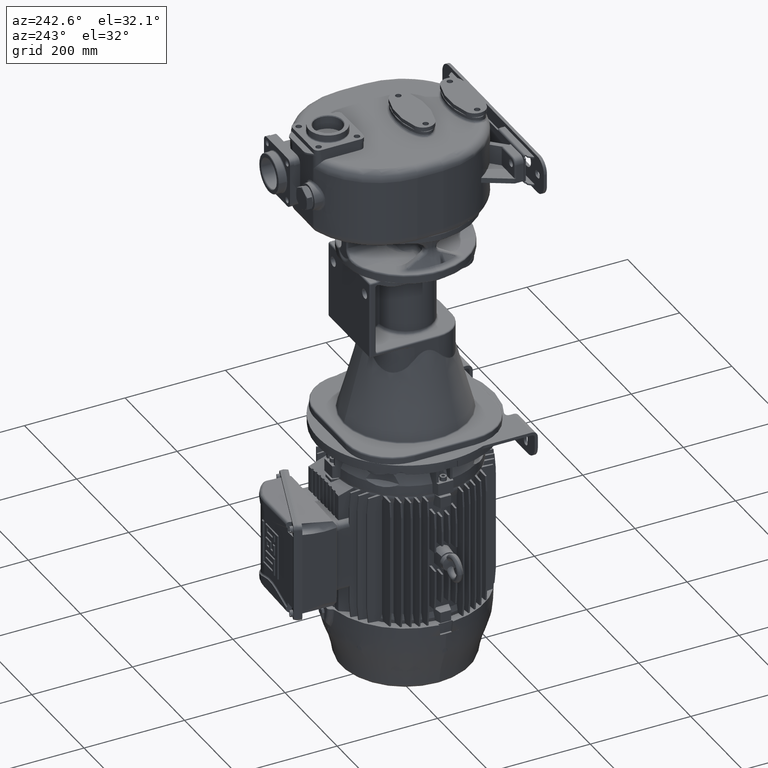
[diagram: clean part render]
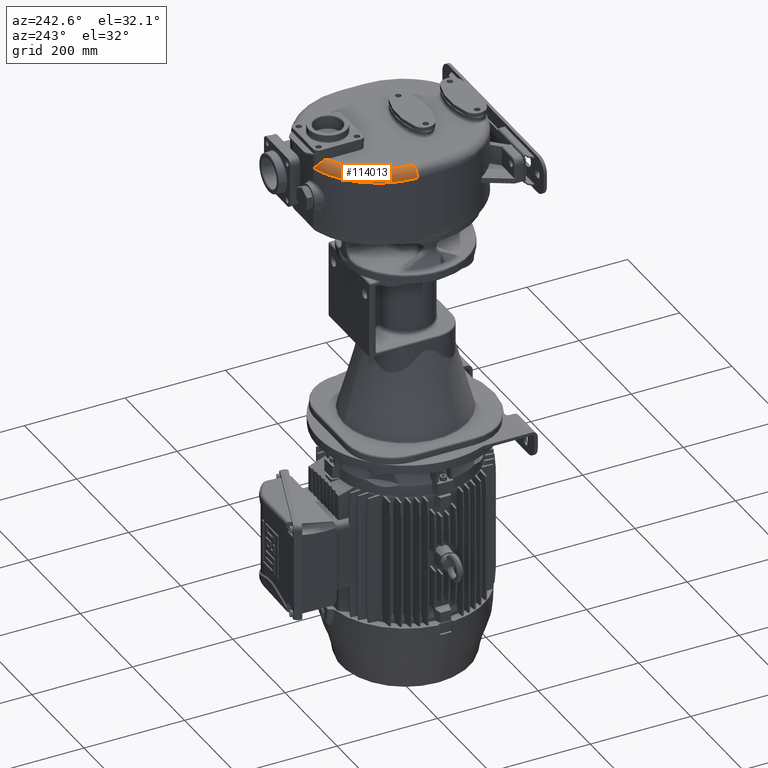
[diagram: same view with one face highlighted and labeled with its STEP entity id]
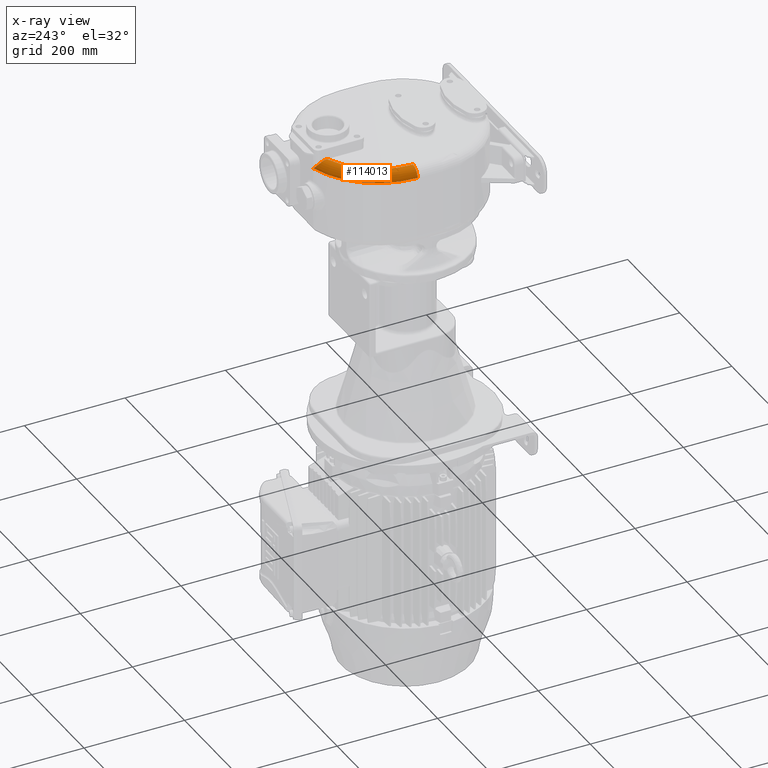
[diagram: x-ray of the same camera — body ghosted, the highlighted face saturated]
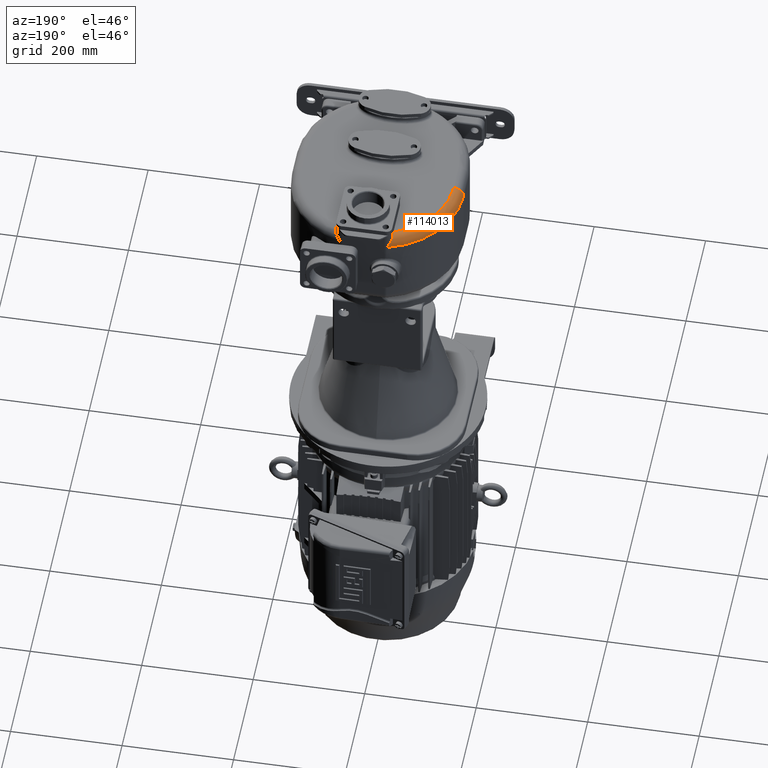
[diagram: same view with one face highlighted and labeled with its STEP entity id]
A machine part, auxiliary view. The second image highlights one B-rep face of the part: STEP entity #114013.
The next image is the same camera in x-ray: the body ghosted, the highlighted face saturated — about 0% of this face is hidden behind the body in this view.
A second angle (auxiliary view) of the same face is appended — the face is thin or edge-on in the first view.
In plain terms, the highlighted toroidal blend (fillet) surface has major radius 136 mm and minor (blend) radius 18 mm.
Its self-contained STEP definition (entity closure, byte-faithful):
#25687=CARTESIAN_POINT('',(9.5E0,2.111789489881E2,3.3E1));
#25688=DIRECTION('',(0.E0,0.E0,1.E0));
#25689=DIRECTION('',(-2.676056338028E-1,9.635285282528E-1,0.E0));
#25690=AXIS2_PLACEMENT_3D('',#25687,#25688,#25689);
#26089=CARTESIAN_POINT('',(-3.171126760563E1,3.595623423390E2,3.3E1));
#26090=CARTESIAN_POINT('',(-3.189057724081E1,3.595125417704E2,
3.321886105604E1));
#26091=CARTESIAN_POINT('',(-3.224653579066E1,3.594047009479E2,
3.365616132679E1));
#26092=CARTESIAN_POINT('',(-3.277228582911E1,3.592183373488E2,
3.431106263049E1));
#26093=CARTESIAN_POINT('',(-3.328771050714E1,3.590082179787E2,
3.496270602629E1));
#26094=CARTESIAN_POINT('',(-3.379182460641E1,3.587749333241E2,
3.561025962266E1));
#26095=CARTESIAN_POINT('',(-3.428318839637E1,3.585193404082E2,
3.625227897647E1));
#26096=CARTESIAN_POINT('',(-3.476004921539E1,3.582426859973E2,
3.688681326250E1));
#26097=CARTESIAN_POINT('',(-3.522164159615E1,3.579458249594E2,
3.751313876439E1));
#26098=CARTESIAN_POINT('',(-3.566682112583E1,3.576299176393E2,
3.812997660185E1));
#26099=CARTESIAN_POINT('',(-3.609423954606E1,3.572964943303E2,
3.873565076032E1));
#26100=CARTESIAN_POINT('',(-3.650350238555E1,3.569465039311E2,
3.932974418998E1));
#26101=CARTESIAN_POINT('',(-3.689379219964E1,3.565812955521E2,
3.991118772993E1));
#26102=CARTESIAN_POINT('',(-3.726415316361E1,3.562025796319E2,
4.047857456111E1));
#26103=CARTESIAN_POINT('',(-3.761446031041E1,3.558113832910E2,
4.103166614961E1));
#26104=CARTESIAN_POINT('',(-3.794436612783E1,3.554090000695E2,
4.156984009953E1));
#26105=CARTESIAN_POINT('',(-3.825336888095E1,3.549970840431E2,
4.209211134320E1));
#26106=CARTESIAN_POINT('',(-3.854133921898E1,3.545770111318E2,
4.259798571599E1));
#26107=CARTESIAN_POINT('',(-3.880859068779E1,3.541495334340E2,
4.308771069176E1));
#26108=CARTESIAN_POINT('',(-3.905494564349E1,3.537161957921E2,
4.356060674603E1));
#26109=CARTESIAN_POINT('',(-3.928036975245E1,3.532785843826E2,
4.401608550607E1));
#26110=CARTESIAN_POINT('',(-3.948542127864E1,3.528372054771E2,
4.445469313156E1));
#26111=CARTESIAN_POINT('',(-3.967033402075E1,3.523931568784E2,
4.487631958927E1));
#26112=CARTESIAN_POINT('',(-3.983533858723E1,3.519476922814E2,
4.528074316633E1));
#26113=CARTESIAN_POINT('',(-3.998072392513E1,3.515021853346E2,
4.566770468976E1));
#26114=CARTESIAN_POINT('',(-4.010724676467E1,3.510565509237E2,
4.603818447486E1));
#26115=CARTESIAN_POINT('',(-4.021527092038E1,3.506117825849E2,
4.639217167154E1));
#26116=CARTESIAN_POINT('',(-4.030524964508E1,3.501687129750E2,
4.672981075212E1));
#26117=CARTESIAN_POINT('',(-4.037765488596E1,3.497282843763E2,
4.705118049006E1));
#26118=CARTESIAN_POINT('',(-4.043310963988E1,3.492903728039E2,
4.735710223681E1));
#26119=CARTESIAN_POINT('',(-4.047204905307E1,3.488559894008E2,
4.764755393289E1));
#26120=CARTESIAN_POINT('',(-4.049501481425E1,3.484253277468E2,
4.792307456336E1));
#26121=CARTESIAN_POINT('',(-4.05E1,3.481412053775E2,4.809689824037E1));
#26122=CARTESIAN_POINT('',(-4.05E1,3.48E2,4.818138434252E1));
#26124=CARTESIAN_POINT('',(-4.05E1,3.48E2,4.818138434252E1));
#26125=CARTESIAN_POINT('',(-4.05E1,3.478233647988E2,4.828706884201E1));
#26126=CARTESIAN_POINT('',(-4.05E1,3.474661065439E2,4.849313646055E1));
#26127=CARTESIAN_POINT('',(-4.05E1,3.469177098407E2,4.878646139897E1));
#26128=CARTESIAN_POINT('',(-4.05E1,3.463581390438E2,4.906312208690E1));
#26129=CARTESIAN_POINT('',(-4.05E1,3.457874168872E2,4.932297281632E1));
#26130=CARTESIAN_POINT('',(-4.05E1,3.452060858461E2,4.956557714867E1));
#26131=CARTESIAN_POINT('',(-4.05E1,3.446152650074E2,4.979033789109E1));
#26132=CARTESIAN_POINT('',(-4.05E1,3.440148917652E2,4.999714104396E1));
#26133=CARTESIAN_POINT('',(-4.05E1,3.434058370367E2,5.018551360113E1));
#26134=CARTESIAN_POINT('',(-4.05E1,3.427891978197E2,5.035501067046E1));
#26135=CARTESIAN_POINT('',(-4.05E1,3.421649189828E2,5.050552088437E1));
#26136=CARTESIAN_POINT('',(-4.05E1,3.415341130018E2,5.063662775097E1));
#26137=CARTESIAN_POINT('',(-4.05E1,3.408977784119E2,5.074804107506E1));
#26138=CARTESIAN_POINT('',(-4.05E1,3.402559588287E2,5.083964014793E1));
#26139=CARTESIAN_POINT('',(-4.05E1,3.396099961431E2,5.091111611948E1));
#26140=CARTESIAN_POINT('',(-4.05E1,3.389607490995E2,5.096232002352E1));
#26141=CARTESIAN_POINT('',(-4.05E1,3.383083466562E2,5.099314069030E1));
#26142=CARTESIAN_POINT('',(-4.05E1,3.378724961574E2,5.1E1));
#26143=CARTESIAN_POINT('',(-4.05E1,3.376542430182E2,5.1E1));
#26264=CARTESIAN_POINT('',(9.5E0,2.111789489881E2,5.1E1));
#26265=DIRECTION('',(0.E0,0.E0,1.E0));
#26266=DIRECTION('',(-3.676470588235E-1,9.299653972801E-1,0.E0));
#26267=AXIS2_PLACEMENT_3D('',#26264,#26265,#26266);
#28085=CARTESIAN_POINT('',(-1.265E2,2.111789489881E2,3.3E1));
#28086=DIRECTION('',(0.E0,-1.E0,0.E0));
#28087=DIRECTION('',(0.E0,0.E0,1.E0));
#28088=AXIS2_PLACEMENT_3D('',#28085,#28086,#28087);
#63550=CARTESIAN_POINT('',(-1.265E2,2.111789489881E2,5.1E1));
#63552=VERTEX_POINT('',#63550);
#63554=CARTESIAN_POINT('',(-1.445E2,2.111789489881E2,3.3E1));
#63555=VERTEX_POINT('',#63554);
#63556=CARTESIAN_POINT('',(-4.05E1,3.376542430182E2,5.1E1));
#63557=VERTEX_POINT('',#63556);
#63558=CARTESIAN_POINT('',(-3.171126760563E1,3.595623423390E2,3.3E1));
#63559=VERTEX_POINT('',#63558);
#63564=VERTEX_POINT('',#26122);
#113999=CARTESIAN_POINT('',(9.5E0,2.111789489881E2,3.3E1));
#114000=DIRECTION('',(0.E0,0.E0,-1.E0));
#114001=DIRECTION('',(-2.607968866427E-1,9.653936937423E-1,0.E0));
#114002=AXIS2_PLACEMENT_3D('',#113999,#114000,#114001);
#114003=TOROIDAL_SURFACE('',#114002,1.36E2,1.8E1);
#114005=ORIENTED_EDGE('',*,*,#114004,.T.);
#114007=ORIENTED_EDGE('',*,*,#114006,.T.);
#114008=ORIENTED_EDGE('',*,*,#113568,.F.);
#114009=ORIENTED_EDGE('',*,*,#113985,.T.);
#114010=ORIENTED_EDGE('',*,*,#113974,.T.);
#114011=EDGE_LOOP('',(#114005,#114007,#114008,#114009,#114010));
#114012=FACE_OUTER_BOUND('',#114011,.F.);
#114013=ADVANCED_FACE('',(#114012),#114003,.T.);
#25691=CIRCLE('',#25690,1.54E2);
#26123=B_SPLINE_CURVE_WITH_KNOTS('',3,(#26089,#26090,#26091,#26092,#26093,
#26094,#26095,#26096,#26097,#26098,#26099,#26100,#26101,#26102,#26103,#26104,
#26105,#26106,#26107,#26108,#26109,#26110,#26111,#26112,#26113,#26114,#26115,
#26116,#26117,#26118,#26119,#26120,#26121,#26122),.UNSPECIFIED.,.F.,.F.,(4,1,1,
1,1,1,1,1,1,1,1,1,1,1,1,1,1,1,1,1,1,1,1,1,1,1,1,1,1,1,1,4),(0.E0,
3.225806451613E-2,6.451612903226E-2,9.677419354839E-2,1.290322580645E-1,
1.612903225806E-1,1.935483870968E-1,2.258064516129E-1,2.580645161290E-1,
2.903225806452E-1,3.225806451613E-1,3.548387096774E-1,3.870967741935E-1,
4.193548387097E-1,4.516129032258E-1,4.838709677419E-1,5.161290322581E-1,
5.483870967742E-1,5.806451612903E-1,6.129032258065E-1,6.451612903226E-1,
6.774193548387E-1,7.096774193548E-1,7.419354838710E-1,7.741935483871E-1,
8.064516129032E-1,8.387096774194E-1,8.709677419355E-1,9.032258064516E-1,
9.354838709677E-1,9.677419354839E-1,1.E0),.UNSPECIFIED.);
#26144=B_SPLINE_CURVE_WITH_KNOTS('',3,(#26124,#26125,#26126,#26127,#26128,
#26129,#26130,#26131,#26132,#26133,#26134,#26135,#26136,#26137,#26138,#26139,
#26140,#26141,#26142,#26143),.UNSPECIFIED.,.F.,.F.,(4,1,1,1,1,1,1,1,1,1,1,1,1,1,
1,1,1,4),(0.E0,5.882352941176E-2,1.176470588235E-1,1.764705882353E-1,
2.352941176471E-1,2.941176470588E-1,3.529411764706E-1,4.117647058824E-1,
4.705882352941E-1,5.294117647059E-1,5.882352941176E-1,6.470588235294E-1,
7.058823529412E-1,7.647058823529E-1,8.235294117647E-1,8.823529411765E-1,
9.411764705882E-1,1.E0),.UNSPECIFIED.);
#26268=CIRCLE('',#26267,1.36E2);
#28089=CIRCLE('',#28088,1.8E1);
#113568=EDGE_CURVE('',#63559,#63555,#25691,.T.);
#113974=EDGE_CURVE('',#63564,#63557,#26144,.T.);
#113985=EDGE_CURVE('',#63559,#63564,#26123,.T.);
#114004=EDGE_CURVE('',#63557,#63552,#26268,.T.);
#114006=EDGE_CURVE('',#63552,#63555,#28089,.T.);